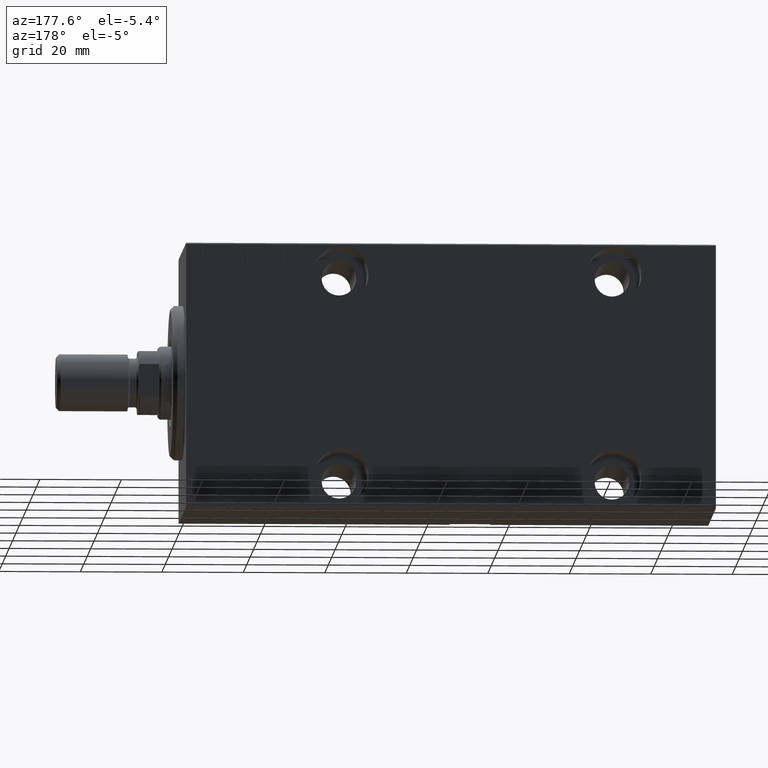
[diagram: clean part render]
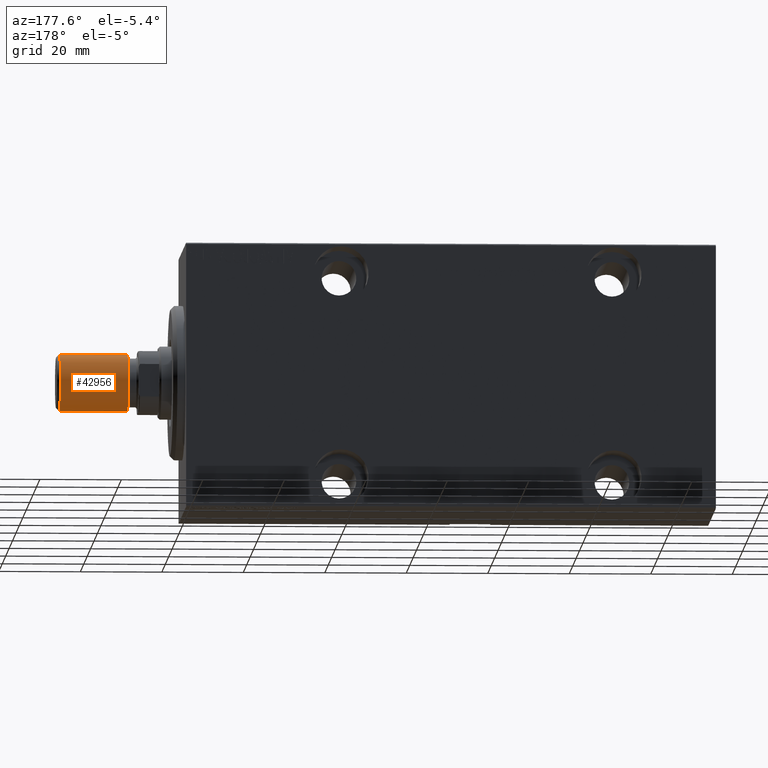
[diagram: same view with one face highlighted and labeled with its STEP entity id]
A machine part, auxiliary view. The second image highlights one B-rep face of the part: STEP entity #42956.
In plain terms, the highlighted cylindrical surface (edge-blend (fillet) strip) has radius 7 mm, axis along (1, -0, -0).
Its self-contained STEP definition (entity closure, byte-faithful):
#52 = CARTESIAN_POINT ( 'NONE',  ( 7.000000000000000000, 8.572527594031473190E-16, 17.50000000000000000 ) ) ;
#57 = CIRCLE ( 'NONE', #28792, 7.000000000000000000 ) ;
#2223 = ORIENTED_EDGE ( 'NONE', *, *, #23787, .T. ) ;
#4031 = DIRECTION ( 'NONE',  ( -1.000000000000000000, 0.000000000000000000, 0.000000000000000000 ) ) ;
#4251 = CARTESIAN_POINT ( 'NONE',  ( 0.000000000000000000, 0.000000000000000000, 17.50000000000000000 ) ) ;
#6305 = EDGE_LOOP ( 'NONE', ( #24230, #2223, #26481, #7257 ) ) ;
#7257 = ORIENTED_EDGE ( 'NONE', *, *, #34719, .F. ) ;
#7697 = DIRECTION ( 'NONE',  ( 0.000000000000000000, 0.000000000000000000, 1.000000000000000000 ) ) ;
#7767 = CYLINDRICAL_SURFACE ( 'NONE', #40323, 7.000000000000000000 ) ;
#8804 = VECTOR ( 'NONE', #29931, 1000.000000000000000 ) ;
#9233 = CARTESIAN_POINT ( 'NONE',  ( 7.000000000000000000, 8.572527594031473190E-16, 0.7999999999999986011 ) ) ;
#9624 = CARTESIAN_POINT ( 'NONE',  ( -7.000000000000000000, 0.000000000000000000, 17.50000000000000000 ) ) ;
#11415 = VECTOR ( 'NONE', #36207, 1000.000000000000000 ) ;
#14058 = CARTESIAN_POINT ( 'NONE',  ( 0.000000000000000000, 0.000000000000000000, 17.50000000000000000 ) ) ;
#16879 = CIRCLE ( 'NONE', #41385, 7.000000000000000000 ) ;
#18396 = EDGE_CURVE ( 'NONE', #28127, #32936, #57, .T. ) ;
#19827 = EDGE_CURVE ( 'NONE', #28457, #38005, #16879, .T. ) ;
#23787 = EDGE_CURVE ( 'NONE', #28127, #28457, #33561, .T. ) ;
#24230 = ORIENTED_EDGE ( 'NONE', *, *, #18396, .F. ) ;
#24719 = DIRECTION ( 'NONE',  ( -0.000000000000000000, -0.000000000000000000, 1.000000000000000000 ) ) ;
#26481 = ORIENTED_EDGE ( 'NONE', *, *, #19827, .T. ) ;
#27480 = DIRECTION ( 'NONE',  ( -0.000000000000000000, -0.000000000000000000, -1.000000000000000000 ) ) ;
#28127 = VERTEX_POINT ( 'NONE', #52 ) ;
#28457 = VERTEX_POINT ( 'NONE', #9233 ) ;
#28792 = AXIS2_PLACEMENT_3D ( 'NONE', #14058, #7697, #40549 ) ;
#29853 = CARTESIAN_POINT ( 'NONE',  ( 7.000000000000000000, 8.572527594031473190E-16, 17.50000000000000000 ) ) ;
#29931 = DIRECTION ( 'NONE',  ( -0.000000000000000000, -0.000000000000000000, -1.000000000000000000 ) ) ;
#32936 = VERTEX_POINT ( 'NONE', #9624 ) ;
#33427 = LINE ( 'NONE', #37132, #8804 ) ;
#33561 = LINE ( 'NONE', #29853, #11415 ) ;
#33830 = FACE_OUTER_BOUND ( 'NONE', #6305, .T. ) ;
#34267 = CARTESIAN_POINT ( 'NONE',  ( -7.000000000000000000, 0.000000000000000000, 0.7999999999999986011 ) ) ;
#34719 = EDGE_CURVE ( 'NONE', #32936, #38005, #33427, .T. ) ;
#36207 = DIRECTION ( 'NONE',  ( -0.000000000000000000, -0.000000000000000000, -1.000000000000000000 ) ) ;
#37132 = CARTESIAN_POINT ( 'NONE',  ( -7.000000000000000000, 0.000000000000000000, 17.50000000000000000 ) ) ;
#38005 = VERTEX_POINT ( 'NONE', #34267 ) ;
#40081 = DIRECTION ( 'NONE',  ( 1.000000000000000000, 0.000000000000000000, 0.000000000000000000 ) ) ;
#40323 = AXIS2_PLACEMENT_3D ( 'NONE', #4251, #27480, #4031 ) ;
#40549 = DIRECTION ( 'NONE',  ( 1.000000000000000000, 0.000000000000000000, 0.000000000000000000 ) ) ;
#41385 = AXIS2_PLACEMENT_3D ( 'NONE', #43371, #24719, #40081 ) ;
#42956 = ADVANCED_FACE ( 'NONE', ( #33830 ), #7767, .T. ) ;
#43371 = CARTESIAN_POINT ( 'NONE',  ( 0.000000000000000000, 0.000000000000000000, 0.7999999999999986011 ) ) ;